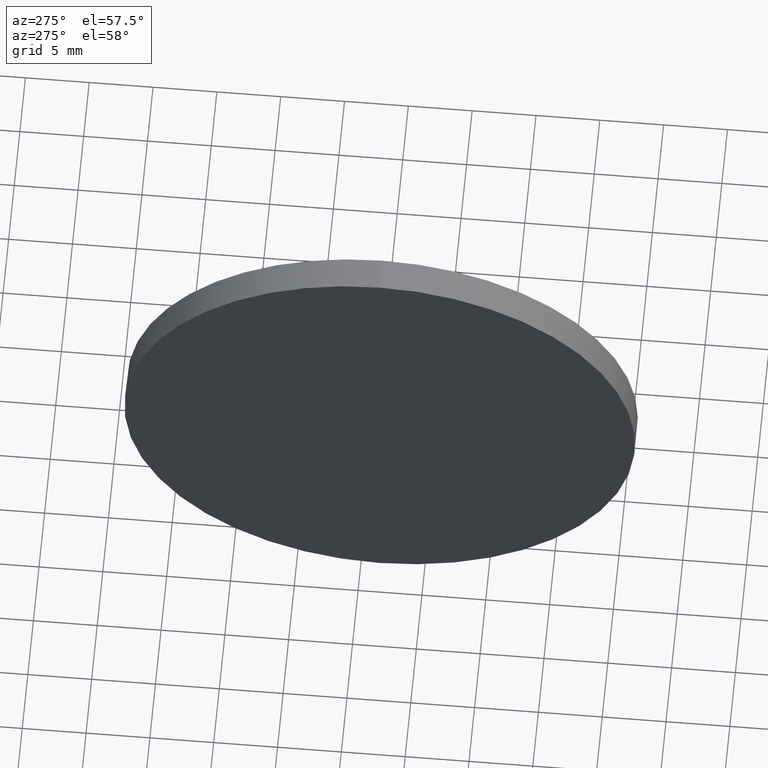
[diagram: clean part render]
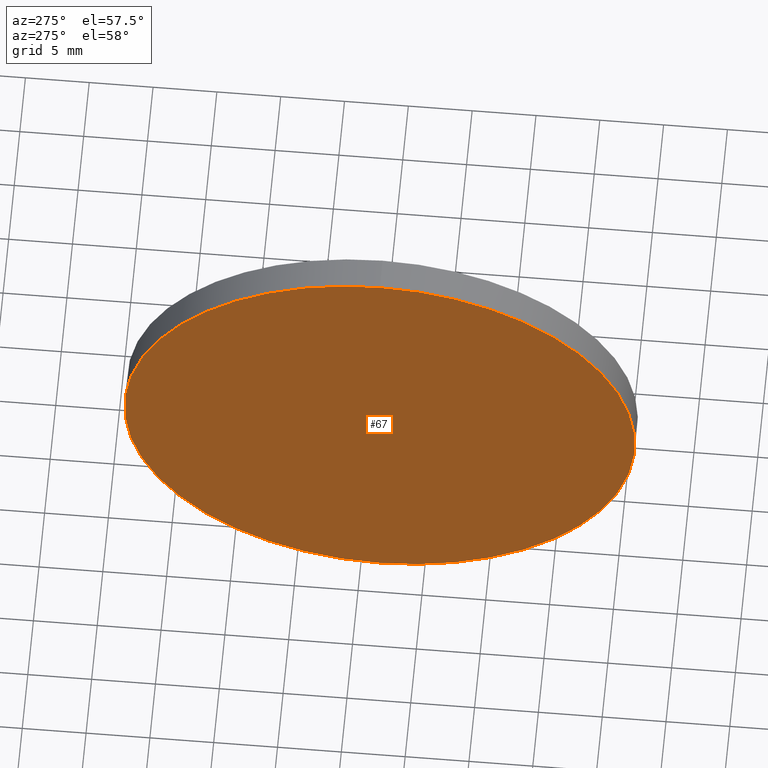
[diagram: same view with one face highlighted and labeled with its STEP entity id]
A machine part, auxiliary view. The second image highlights one B-rep face of the part: STEP entity #67.
In plain terms, the highlighted planar face has unit normal (1, 0, 0).
Its self-contained STEP definition (entity closure, byte-faithful):
#9 = DIRECTION ( 'NONE',  ( 1.000000000000000000, 0.0000000000000000000, 0.0000000000000000000 ) ) ;
#14 = VERTEX_POINT ( 'NONE', #122 ) ;
#15 = AXIS2_PLACEMENT_3D ( 'NONE', #128, #9, #41 ) ;
#19 = DIRECTION ( 'NONE',  ( 0.0000000000000000000, 0.0000000000000000000, 1.000000000000000000 ) ) ;
#28 = VERTEX_POINT ( 'NONE', #68 ) ;
#33 = AXIS2_PLACEMENT_3D ( 'NONE', #106, #92, #19 ) ;
#36 = EDGE_CURVE ( 'NONE', #28, #14, #51, .T. ) ;
#41 = DIRECTION ( 'NONE',  ( 0.0000000000000000000, 0.0000000000000000000, -1.000000000000000000 ) ) ;
#51 = CIRCLE ( 'NONE', #101, 19.99999999999998900 ) ;
#53 = EDGE_LOOP ( 'NONE', ( #95, #113 ) ) ;
#67 = ADVANCED_FACE ( 'NONE', ( #118 ), #80, .F. ) ;
#68 = CARTESIAN_POINT ( 'NONE',  ( 497.1385831728898700, 143.4929616837899900, 19.99999999999998900 ) ) ;
#80 = PLANE ( 'NONE',  #15 ) ;
#90 = DIRECTION ( 'NONE',  ( 0.0000000000000000000, 0.0000000000000000000, 1.000000000000000000 ) ) ;
#91 = DIRECTION ( 'NONE',  ( -1.000000000000000000, -0.0000000000000000000, -0.0000000000000000000 ) ) ;
#92 = DIRECTION ( 'NONE',  ( -1.000000000000000000, -0.0000000000000000000, -0.0000000000000000000 ) ) ;
#95 = ORIENTED_EDGE ( 'NONE', *, *, #36, .T. ) ;
#101 = AXIS2_PLACEMENT_3D ( 'NONE', #125, #91, #90 ) ;
#106 = CARTESIAN_POINT ( 'NONE',  ( 497.1385831728898700, 143.4929616837899900, 0.0000000000000000000 ) ) ;
#108 = EDGE_CURVE ( 'NONE', #14, #28, #129, .T. ) ;
#113 = ORIENTED_EDGE ( 'NONE', *, *, #108, .T. ) ;
#118 = FACE_OUTER_BOUND ( 'NONE', #53, .T. ) ;
#122 = CARTESIAN_POINT ( 'NONE',  ( 497.1385831728898700, 143.4929616837899900, -19.99999999999998900 ) ) ;
#125 = CARTESIAN_POINT ( 'NONE',  ( 497.1385831728898700, 143.4929616837899900, 0.0000000000000000000 ) ) ;
#128 = CARTESIAN_POINT ( 'NONE',  ( 497.1385831728898700, 143.4929616837899900, 0.0000000000000000000 ) ) ;
#129 = CIRCLE ( 'NONE', #33, 19.99999999999998900 ) ;